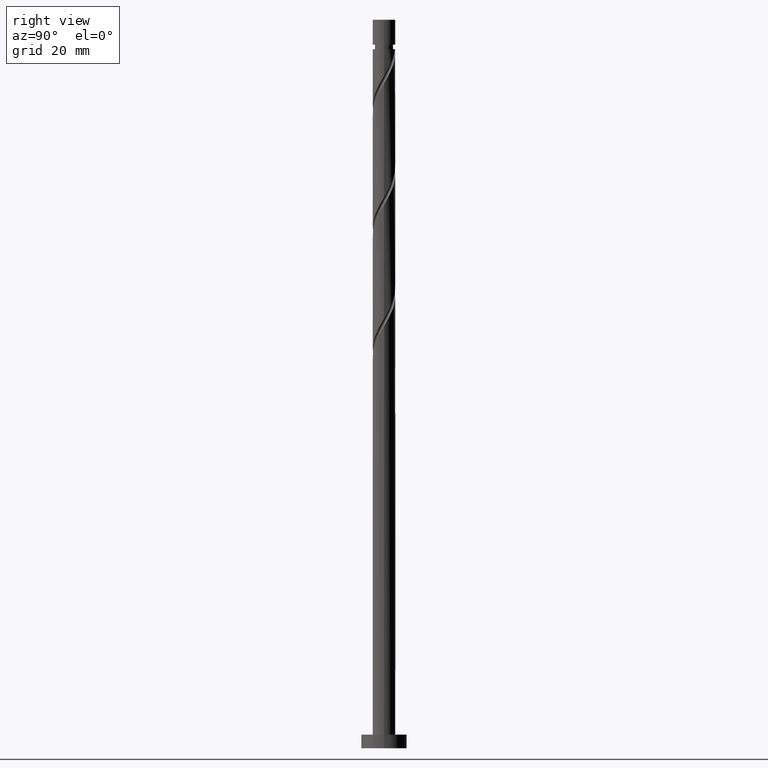
[diagram: clean part render]
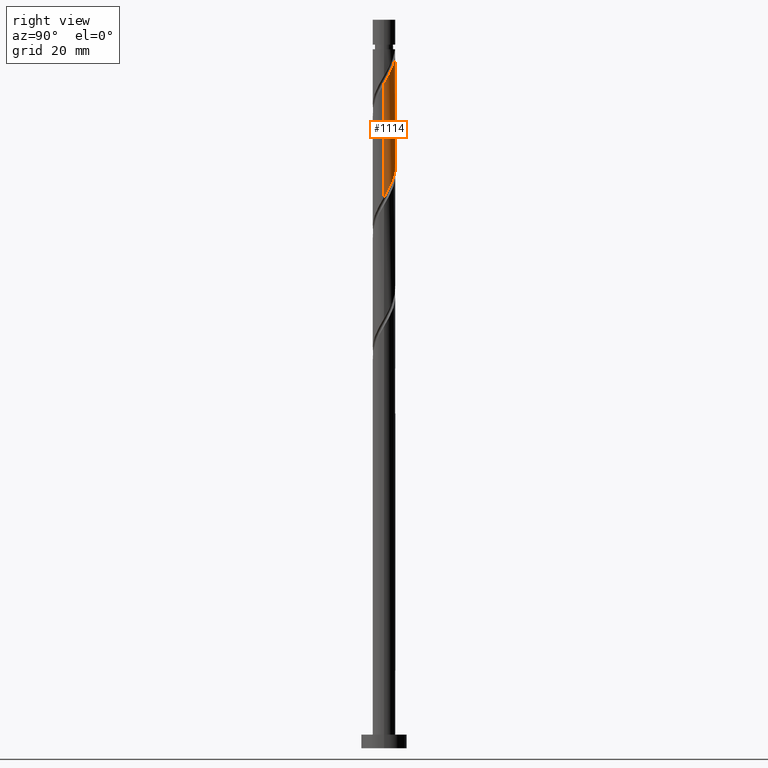
[diagram: same view with one face highlighted and labeled with its STEP entity id]
A machine part, right view. The second image highlights one B-rep face of the part: STEP entity #1114.
In plain terms, the highlighted cylindrical surface (edge-blend (fillet) strip) has radius 2.5 mm, axis along (-0, -0, -1).
Its self-contained STEP definition (entity closure, byte-faithful):
#9 = CIRCLE ( 'NONE', #191, 2.499999999999993339 ) ;
#21 = DIRECTION ( 'NONE',  ( -0.000000000000000000, -0.000000000000000000, -1.000000000000000000 ) ) ;
#32 = CARTESIAN_POINT ( 'NONE',  ( 1.525797355502944930, 1.980389464206532946, 149.8789508753654616 ) ) ;
#53 = LINE ( 'NONE', #557, #1462 ) ;
#59 = CARTESIAN_POINT ( 'NONE',  ( -2.500000000000000444, 0.07193881630956475148, 134.2426709863117651 ) ) ;
#62 = DIRECTION ( 'NONE',  ( -0.000000000000000000, -0.000000000000000000, -1.000000000000000000 ) ) ;
#70 = CARTESIAN_POINT ( 'NONE',  ( 1.167586491630752343, 2.210597608014944093, 125.6365266329412265 ) ) ;
#100 = EDGE_CURVE ( 'NONE', #818, #859, #53, .T. ) ;
#104 = DIRECTION ( 'NONE',  ( -0.000000000000000000, -0.000000000000000000, -1.000000000000000000 ) ) ;
#156 = CARTESIAN_POINT ( 'NONE',  ( 1.810534374112180656, 1.761012923450276935, 149.2728902693048667 ) ) ;
#162 = EDGE_CURVE ( 'NONE', #1569, #391, #1396, .T. ) ;
#183 = CARTESIAN_POINT ( 'NONE',  ( -2.233329684002602900, 1.179593048026942315, 132.3031932996078694 ) ) ;
#190 = CARTESIAN_POINT ( 'NONE',  ( -1.241060336893708760, 2.199766004962784738, 129.8789508753654047 ) ) ;
#191 = AXIS2_PLACEMENT_3D ( 'NONE', #336, #589, #1369 ) ;
#199 = CARTESIAN_POINT ( 'NONE',  ( -0.2129030368922528726, 2.490917962696093113, 128.0607690571836486 ) ) ;
#210 = CARTESIAN_POINT ( 'NONE',  ( -1.810534374112176215, 1.761012923450275158, 131.0910720874866513 ) ) ;
#288 = CYLINDRICAL_SURFACE ( 'NONE', #809, 2.500000000000000000 ) ;
#294 = CARTESIAN_POINT ( 'NONE',  ( 0.2129030368922538718, 2.490917962696097554, 152.3031932996078694 ) ) ;
#306 = CARTESIAN_POINT ( 'NONE',  ( 2.021932029057393887, 1.470302985738609847, 148.6668296632442150 ) ) ;
#317 = CARTESIAN_POINT ( 'NONE',  ( -2.475193905018187035, 0.5026095591624444303, 133.5153145117290876 ) ) ;
#325 = CARTESIAN_POINT ( 'NONE',  ( 2.435264748179749805, 0.5652305779706334743, 122.0001629965775720 ) ) ;
#336 = CARTESIAN_POINT ( 'NONE',  ( 0.000000000000000000, 0.000000000000000000, 153.5153145117290876 ) ) ;
#391 = VERTEX_POINT ( 'NONE', #693 ) ;
#444 = CARTESIAN_POINT ( 'NONE',  ( 2.000754257700505523, 1.541487475360715953, 123.8183448147593992 ) ) ;
#454 = CARTESIAN_POINT ( 'NONE',  ( 0.8497505388409958282, 2.378471201873189500, 126.2425872390018071 ) ) ;
#464 = ORIENTED_EDGE ( 'NONE', *, *, #162, .T. ) ;
#485 = EDGE_LOOP ( 'NONE', ( #514, #464, #1293, #867, #1182 ) ) ;
#514 = ORIENTED_EDGE ( 'NONE', *, *, #1020, .F. ) ;
#543 = CARTESIAN_POINT ( 'NONE',  ( -2.499999999999993339, 0.000000000000000000, 153.5153145117290876 ) ) ;
#557 = CARTESIAN_POINT ( 'NONE',  ( -2.500000000000000000, 0.000000000000000000, 160.0000000000000000 ) ) ;
#561 = CARTESIAN_POINT ( 'NONE',  ( -0.1452368982656077889, 2.521528798126812188, 152.9092539056684927 ) ) ;
#571 = CARTESIAN_POINT ( 'NONE',  ( 1.743088351060507524, 1.792105744758707209, 124.4244054208199799 ) ) ;
#589 = DIRECTION ( 'NONE',  ( -0.000000000000000000, -0.000000000000000000, -1.000000000000000000 ) ) ;
#659 = CARTESIAN_POINT ( 'NONE',  ( 1.241060336893710536, 2.199766004962788735, 150.4850114814260849 ) ) ;
#693 = CARTESIAN_POINT ( 'NONE',  ( 2.500000000000000444, -3.155889168437744836E-15, 121.0314356576966190 ) ) ;
#697 = CARTESIAN_POINT ( 'NONE',  ( -0.5710429720501314366, 2.460307127265375371, 128.6668296632442150 ) ) ;
#707 = CARTESIAN_POINT ( 'NONE',  ( 1.485422444420509969, 2.042724014156697798, 125.0304660268805890 ) ) ;
#792 = CARTESIAN_POINT ( 'NONE',  ( 2.500000000000003109, 0.07193881630956122653, 146.1212913704798382 ) ) ;
#808 = CARTESIAN_POINT ( 'NONE',  ( -2.500000000000000888, 6.094904436674791625E-15, 134.3647689910299619 ) ) ;
#809 = AXIS2_PLACEMENT_3D ( 'NONE', #988, #104, #1615 ) ;
#812 = CARTESIAN_POINT ( 'NONE',  ( -2.354261794510395411, 0.8411013035946935945, 132.9092539056684927 ) ) ;
#818 = VERTEX_POINT ( 'NONE', #543 ) ;
#820 = CARTESIAN_POINT ( 'NONE',  ( 2.233329684002607785, 1.179593048026943647, 148.0607690571836770 ) ) ;
#829 = CARTESIAN_POINT ( 'NONE',  ( -1.525797355502942487, 1.980389464206529837, 130.4850114814260564 ) ) ;
#841 = CARTESIAN_POINT ( 'NONE',  ( 2.500000000000000888, 0.2863223184628012064, 121.5173956106679185 ) ) ;
#859 = VERTEX_POINT ( 'NONE', #808 ) ;
#867 = ORIENTED_EDGE ( 'NONE', *, *, #100, .F. ) ;
#937 = CARTESIAN_POINT ( 'NONE',  ( 0.5710429720501333239, 2.460307127265380256, 151.6971326935472462 ) ) ;
#947 = CARTESIAN_POINT ( 'NONE',  ( -2.500000000000000888, 6.094904436674791625E-15, 134.3647689910299619 ) ) ;
#953 = CARTESIAN_POINT ( 'NONE',  ( 0.9060516544719215970, 2.330036566114083829, 151.0910720874867081 ) ) ;
#956 = CARTESIAN_POINT ( 'NONE',  ( -2.021932029057389446, 1.470302985738609181, 131.6971326935473030 ) ) ;
#964 = CARTESIAN_POINT ( 'NONE',  ( 2.500000000000003997, 1.839688946530046523E-15, 145.9991933657615846 ) ) ;
#973 = CARTESIAN_POINT ( 'NONE',  ( 2.353996859965339361, 0.9153687888900159386, 122.6062236026381669 ) ) ;
#988 = CARTESIAN_POINT ( 'NONE',  ( 0.000000000000000000, 0.000000000000000000, 160.0000000000000000 ) ) ;
#996 = VERTEX_POINT ( 'NONE', #1083 ) ;
#1020 = EDGE_CURVE ( 'NONE', #1569, #996, #1130, .T. ) ;
#1027 =( BOUNDED_CURVE ( )  B_SPLINE_CURVE ( 2, ( #947, #59, #1464, #317, #812, #183, #956, #210, #829, #190, #1103, #697, #199, #1617, #1224, #454, #70, #707, #571, #444, #1477, #973, #325, #841, #1242 ),
 .UNSPECIFIED., .F., .T. ) 
 B_SPLINE_CURVE_WITH_KNOTS ( ( 3, 2, 2, 2, 2, 2, 2, 2, 2, 2, 2, 2, 3 ),
 ( 0.4295252162417516062, 0.4318181818181818232, 0.4431818181818181768, 0.4545454545454545303, 0.4659090909090908839, 0.4772727272727272929, 0.4886363636363636465, 0.5000000000000000000, 0.5113636363636363535, 0.5227272727272727071, 0.5340909090909090606, 0.5454545454545454142, 0.5545252162417514397 ),
 .UNSPECIFIED. ) 
 CURVE ( )  GEOMETRIC_REPRESENTATION_ITEM ( )  RATIONAL_B_SPLINE_CURVE ( ( 0.9061101570135603467, 0.9072237824201423440, 0.9090909090909196077, 0.8998376744372220681, 0.9090909090909196077, 0.8998376744372220681, 0.9090909090909196077, 0.8998376744372220681, 0.9090909090909196077, 0.8998376744372220681, 0.9090909090909196077, 0.8998376744372220681, 0.9090909090909196077, 0.8998376744372220681, 0.9090909090909196077, 0.8998376744372220681, 0.9090909090909196077, 0.8998376744372220681, 0.9090909090909196077, 0.8998376744372220681, 0.9090909090909196077, 0.8998376744372220681, 0.9090909090909196077, 0.9017048011079994430, 0.9061101570135601246 ) ) 
 REPRESENTATION_ITEM ( '' )  );
#1061 = CARTESIAN_POINT ( 'NONE',  ( 2.475193905018193252, 0.5026095591624444303, 146.8486478450624588 ) ) ;
#1083 = CARTESIAN_POINT ( 'NONE',  ( -0.4974937185533292450, 2.450000000000001066, 153.5153145117291729 ) ) ;
#1103 = CARTESIAN_POINT ( 'NONE',  ( -0.9060516544719198206, 2.330036566114079832, 129.2728902693048667 ) ) ;
#1114 = ADVANCED_FACE ( 'NONE', ( #1444 ), #288, .T. ) ;
#1130 =( BOUNDED_CURVE ( )  B_SPLINE_CURVE ( 2, ( #1214, #792, #1459, #1061, #1577, #820, #306, #156, #32, #659, #953, #937, #294, #561, #1328 ),
 .UNSPECIFIED., .F., .T. ) 
 B_SPLINE_CURVE_WITH_KNOTS ( ( 3, 2, 2, 2, 2, 2, 2, 3 ),
 ( 0.6795252162417515507, 0.6818181818181818787, 0.6931818181818180102, 0.7045454545454543638, 0.7159090909090904953, 0.7272727272727269598, 0.7386363636363632024, 0.7499999999999994449 ),
 .UNSPECIFIED. ) 
 CURVE ( )  GEOMETRIC_REPRESENTATION_ITEM ( )  RATIONAL_B_SPLINE_CURVE ( ( 0.9061101570135665639, 0.9072237824201487832, 0.9090909090909261581, 0.8998376744372282854, 0.9090909090909261581, 0.8998376744372282854, 0.9090909090909261581, 0.8998376744372282854, 0.9090909090909261581, 0.8998376744372282854, 0.9090909090909261581, 0.8998376744372282854, 0.9090909090909261581, 0.8998376744372287295, 0.9090909090909257140 ) ) 
 REPRESENTATION_ITEM ( '' )  );
#1182 = ORIENTED_EDGE ( 'NONE', *, *, #1566, .T. ) ;
#1214 = CARTESIAN_POINT ( 'NONE',  ( 2.500000000000003997, 1.839688946530046523E-15, 145.9991933657615846 ) ) ;
#1224 = CARTESIAN_POINT ( 'NONE',  ( 0.4974937185533113704, 2.449999999999999289, 126.8486478450624162 ) ) ;
#1242 = CARTESIAN_POINT ( 'NONE',  ( 2.500000000000000000, -3.155889168437744836E-15, 121.0314356576966190 ) ) ;
#1268 = CARTESIAN_POINT ( 'NONE',  ( 2.500000000000000000, 3.061616997868383141E-16, 160.0000000000000000 ) ) ;
#1293 = ORIENTED_EDGE ( 'NONE', *, *, #1641, .F. ) ;
#1328 = CARTESIAN_POINT ( 'NONE',  ( -0.4974937185533292450, 2.450000000000001066, 153.5153145117291729 ) ) ;
#1369 = DIRECTION ( 'NONE',  ( -1.000000000000000000, 0.000000000000000000, 0.000000000000000000 ) ) ;
#1396 = LINE ( 'NONE', #1268, #1515 ) ;
#1444 = FACE_OUTER_BOUND ( 'NONE', #485, .T. ) ;
#1459 = CARTESIAN_POINT ( 'NONE',  ( 2.495863270706177861, 0.1437585960555959053, 146.2425872390018640 ) ) ;
#1462 = VECTOR ( 'NONE', #62, 1000.000000000000000 ) ;
#1464 = CARTESIAN_POINT ( 'NONE',  ( -2.495863270706175197, 0.1437585960555966269, 134.1213751177897109 ) ) ;
#1477 = CARTESIAN_POINT ( 'NONE',  ( 2.177375558832922664, 1.228428132125367167, 123.2122842086988186 ) ) ;
#1515 = VECTOR ( 'NONE', #21, 1000.000000000000000 ) ;
#1566 = EDGE_CURVE ( 'NONE', #818, #996, #9, .T. ) ;
#1569 = VERTEX_POINT ( 'NONE', #964 ) ;
#1577 = CARTESIAN_POINT ( 'NONE',  ( 2.354261794510399408, 0.8411013035946938166, 147.4547084511229968 ) ) ;
#1615 = DIRECTION ( 'NONE',  ( -1.000000000000000000, 0.000000000000000000, 0.000000000000000000 ) ) ;
#1617 = CARTESIAN_POINT ( 'NONE',  ( 0.1452368982656260243, 2.521528798126809967, 127.4547084511230395 ) ) ;
#1641 = EDGE_CURVE ( 'NONE', #859, #391, #1027, .T. ) ;